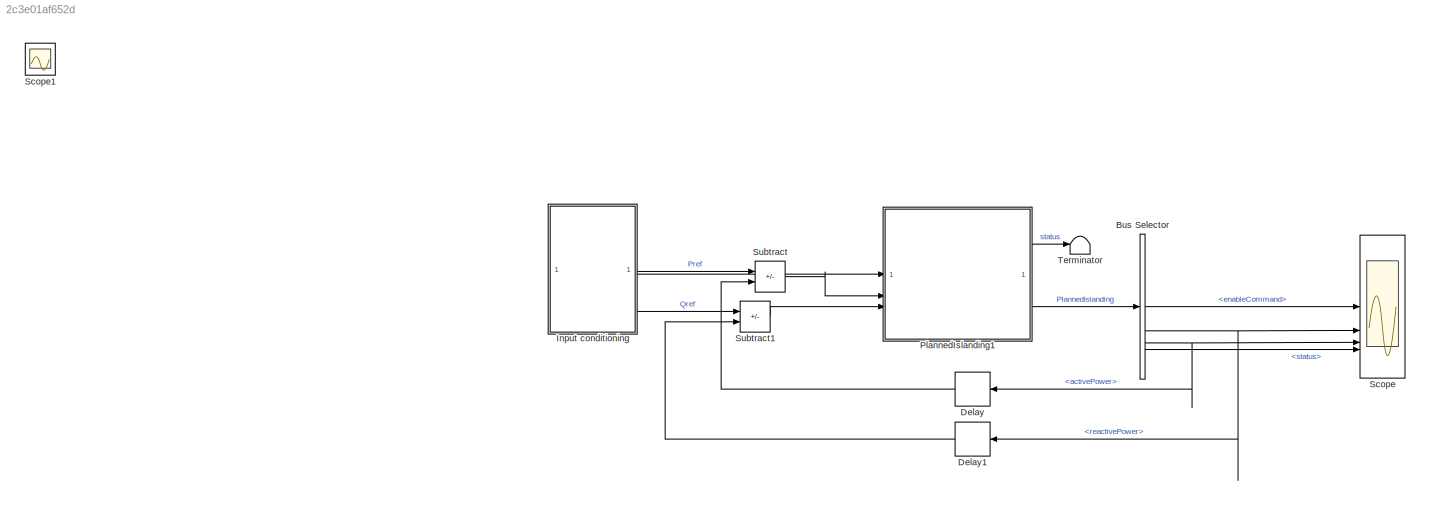
MODEL slx_2c3e01af652d
KIND model
CONFIG AbsTol = auto
CONFIG EnableMultiTasking = off
CONFIG FixedStep = auto
CONFIG MaxStep = auto
CONFIG MinStep = auto
CONFIG PostLoadFcn = PlannedIslandParam;
CONFIG RelTol = 1e-3
CONFIG SampleTimeConstraint = Unconstrained
CONFIG SolverName = FixedStepAuto
CONFIG StartTime = 0.0
CONFIG StopTime = 20
BLOCK [BusSelector] Bus Selector
  OutputSignals = enableCommand,reactivePower,activePower,status
BLOCK [Delay] Delay
  DelayLength = 1
  InputPortMap = u0
  NameLocation = top
BLOCK [Delay] Delay1
  DelayLength = 1
  InputPortMap = u0
  NameLocation = top
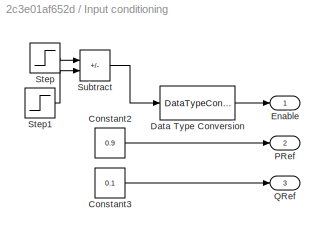
BLOCK [SubSystem] Input conditioning
BLOCK [Constant] Input conditioning/Constant2
  Value = 0.9
BLOCK [Constant] Input conditioning/Constant3
  Value = 0.1
BLOCK [DataTypeConversion] Input conditioning/Data Type Conversion
  OutDataTypeStr = boolean
  RndMeth = Floor
  SaturateOnIntegerOverflow = off
BLOCK [Outport] Input conditioning/Enable
BLOCK [Outport] Input conditioning/PRef
  Port = 2
BLOCK [Outport] Input conditioning/QRef
  Port = 3
BLOCK [Step] Input conditioning/Step
  SampleTime = 0
  Time = 3
BLOCK [Step] Input conditioning/Step1
  SampleTime = 0
  Time = 12
BLOCK [Sum] Input conditioning/Subtract
  IconShape = rectangular
  Inputs = +-
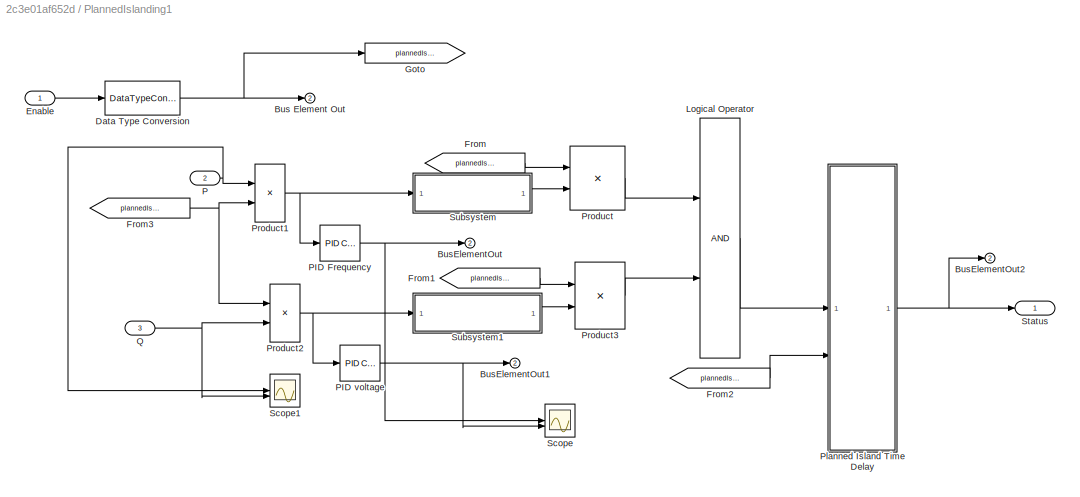
BLOCK [SubSystem] PlannedIslanding1
  CopyFcn = set_param(gcbh,'LinkStatus','none');
BLOCK [Outport] PlannedIslanding1/Bus Element Out
  Port = 2
BLOCK [Outport] PlannedIslanding1/BusElementOut
  Port = 2
BLOCK [Outport] PlannedIslanding1/BusElementOut1
  Port = 2
BLOCK [Outport] PlannedIslanding1/BusElementOut2
  Port = 2
BLOCK [DataTypeConversion] PlannedIslanding1/Data Type Conversion
  OutDataTypeStr = double
  RndMeth = Floor
  SaturateOnIntegerOverflow = off
BLOCK [Inport] PlannedIslanding1/Enable
BLOCK [From] PlannedIslanding1/From
  GotoTag = plannedIslanding
BLOCK [From] PlannedIslanding1/From1
  GotoTag = plannedIslanding
BLOCK [From] PlannedIslanding1/From2
  GotoTag = plannedIslanding
BLOCK [From] PlannedIslanding1/From3
  GotoTag = plannedIslanding
BLOCK [Goto] PlannedIslanding1/Goto
  GotoTag = plannedIslanding
BLOCK [Logic] PlannedIslanding1/Logical Operator
  AllPortsSameDT = off
  OutDataTypeStr = boolean
BLOCK [Inport] PlannedIslanding1/P
  Port = 2
BLOCK [Reference] PlannedIslanding1/PID Frequency  REF=slpidlib/PID Controller
  SourceBlock = slpidlib/PID Controller
  SourceType = PID 1dof
BLOCK [Reference] PlannedIslanding1/PID voltage  REF=slpidlib/PID Controller
  SourceBlock = slpidlib/PID Controller
  SourceType = PID 1dof
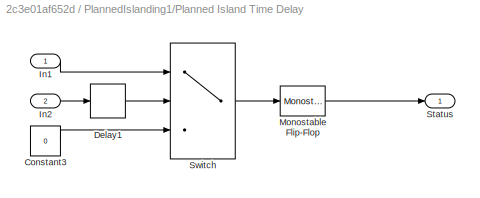
BLOCK [SubSystem] PlannedIslanding1/Planned Island Time Delay
BLOCK [Constant] PlannedIslanding1/Planned Island Time Delay/Constant3
  Value = 0
BLOCK [Delay] PlannedIslanding1/Planned Island Time Delay/Delay1
  DelayLength = 1
  InputPortMap = u0
  SampleTime = Ts
BLOCK [Inport] PlannedIslanding1/Planned Island Time Delay/In1
BLOCK [Inport] PlannedIslanding1/Planned Island Time Delay/In2
  Port = 2
BLOCK [Reference] PlannedIslanding1/Planned Island Time Delay/Monostable Flip-Flop  REF=eeGeneralControl/Monostable Flip-Flop
  SourceBlock = eeGeneralControl/Monostable Flip-Flop
  SourceType = Monostable Flip-Flop
BLOCK [Outport] PlannedIslanding1/Planned Island Time Delay/Status
BLOCK [Switch] PlannedIslanding1/Planned Island Time Delay/Switch
  Criteria = u2 > Threshold
  InputSameDT = off
  SaturateOnIntegerOverflow = off
  Threshold = 0.5
BLOCK [Product] PlannedIslanding1/Product
BLOCK [Product] PlannedIslanding1/Product1
BLOCK [Product] PlannedIslanding1/Product2
BLOCK [Product] PlannedIslanding1/Product3
BLOCK [Inport] PlannedIslanding1/Q
  Port = 3
BLOCK [Scope] PlannedIslanding1/Scope
  ActiveDisplayYMaximum = 1
  ActiveDisplayYMinimum = -1
  DataLoggingVariableName = ScopeData35
  Floating = off
  GraphicalSettings = {"Style":{"BackgroundColor":[0.12941176470588237,0.12941176470588237,0.12941176470588237],"AxesColor":[0.07058823529411765,0.07058823529411765,0.07058823529411765],"LabelsColor":[0.8509803921568627,0.8509803921568627,0.8509803921568627],"PreserveColors":false,"Visible":[true,true],"LineStyle":["-","-"],"LineWidth":[1.5,1.5],"BarWidth":[0.9,0.9],"LineColor":["auto","auto"],"LineFaceAlpha":[1,1],"Li...<+2296ch>
  LayoutDimensionsString = [2,1]
  MultipleDisplayCache = [{"MaxYLimMag":1,"MaxYLimReal":1,"MinYLimMag":0,"MinYLimReal":-1,"PlotAsMagnitudePhase":false,"ShowGrid":true,"ShowLegend":false,"Title":"%<SignalLabel>","YLabel":""},{"MaxYLimMag":1,"MaxYLimReal":1,"MinYLimMag":0,"MinYLimReal":-1,"PlotAsMagnitudePhase":false,"ShowGrid":true,"ShowLegend":false,"Title":"%<SignalLabel>","YLabel":""}]
  NumInputPorts = 2
  ScopeFrameLocation = window
  WasSavedAsWebScope = on
  WindowPosition = [499.000000,148.000000,566.000000,432.000000,]
BLOCK [Scope] PlannedIslanding1/Scope1
  ActiveDisplayYMaximum = 1.1685546180291482
  ActiveDisplayYMinimum = -1.6827967094302978
  DataLoggingVariableName = ScopeData36
  Floating = off
  GraphicalSettings = {"Style":{"BackgroundColor":[0.12941176470588237,0.12941176470588237,0.12941176470588237],"AxesColor":[0.07058823529411765,0.07058823529411765,0.07058823529411765],"LabelsColor":[0.8509803921568627,0.8509803921568627,0.8509803921568627],"PreserveColors":false,"Visible":[true,true],"LineStyle":["-","-"],"LineWidth":[1.5,1.5],"BarWidth":[0.9,0.9],"LineColor":["auto","auto"],"LineFaceAlpha":[1,1],"Li...<+2090ch>
  MultipleDisplayCache = [{"MaxYLimMag":11.557090207821364,"MaxYLimReal":1.1685546180291482,"MinYLimMag":0,"MinYLimReal":-1.6827967094302978,"PlotAsMagnitudePhase":false,"ShowGrid":true,"ShowLegend":false,"Title":"%<SignalLabel>","YLabel":""}]
  NumInputPorts = 2
  ScopeFrameLocation = window
  WasSavedAsWebScope = on
  WindowPosition = [360.000000,150.000000,560.000000,420.000000,]
BLOCK [Outport] PlannedIslanding1/Status
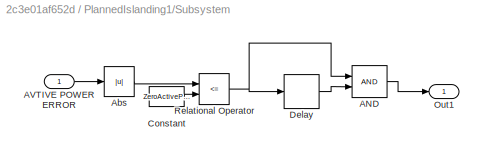
BLOCK [SubSystem] PlannedIslanding1/Subsystem
BLOCK [Logic] PlannedIslanding1/Subsystem/AND
  AllPortsSameDT = off
  IconShape = distinctive
  OutDataTypeStr = boolean
BLOCK [Inport] PlannedIslanding1/Subsystem/AVTIVE POWER ERROR
BLOCK [Abs] PlannedIslanding1/Subsystem/Abs
  SaturateOnIntegerOverflow = off
BLOCK [Constant] PlannedIslanding1/Subsystem/Constant
  SampleTime = -1
  Value = ZeroActivePowerThreshold
BLOCK [Delay] PlannedIslanding1/Subsystem/Delay
  DelayLength = 1000
  InputPortMap = u0
  SampleTime = Ts
BLOCK [Outport] PlannedIslanding1/Subsystem/Out1
BLOCK [RelationalOperator] PlannedIslanding1/Subsystem/Relational Operator
  InputSameDT = off
  Operator = <=
  OutDataTypeStr = boolean
  RndMeth = Simplest
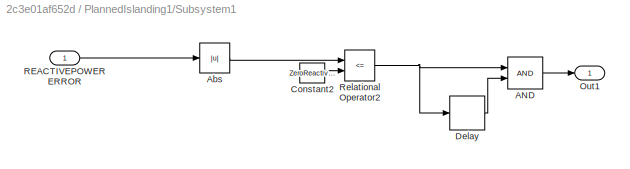
BLOCK [SubSystem] PlannedIslanding1/Subsystem1
BLOCK [Logic] PlannedIslanding1/Subsystem1/AND
  AllPortsSameDT = off
  IconShape = distinctive
  OutDataTypeStr = boolean
BLOCK [Abs] PlannedIslanding1/Subsystem1/Abs
  SaturateOnIntegerOverflow = off
BLOCK [Constant] PlannedIslanding1/Subsystem1/Constant2
  Value = ZeroReactivePowerThreshold
BLOCK [Delay] PlannedIslanding1/Subsystem1/Delay
  DelayLength = 50
  InputPortMap = u0
  SampleTime = Ts
BLOCK [Outport] PlannedIslanding1/Subsystem1/Out1
BLOCK [Inport] PlannedIslanding1/Subsystem1/REACTIVEPOWER ERROR
BLOCK [RelationalOperator] PlannedIslanding1/Subsystem1/Relational Operator2
  InputSameDT = off
  Operator = <=
  OutDataTypeStr = boolean
  RndMeth = Simplest
BLOCK [Scope] Scope
  ActiveDisplayYMaximum = 1.125
  ActiveDisplayYMinimum = -0.12499999999999997
  Floating = off
  GraphicalSettings = {"Style":{"BackgroundColor":[0.12941176470588237,0.12941176470588237,0.12941176470588237],"AxesColor":[0.07058823529411765,0.07058823529411765,0.07058823529411765],"LabelsColor":[0.8509803921568627,0.8509803921568627,0.8509803921568627],"PreserveColors":false,"Visible":[true,true,true,true],"LineStyle":["-","-","-","-"],"LineWidth":[1.5,1.5,1.5,1.5],"BarWidth":[0.9,0.9,0.9,0.9],"LineColor":["auto"...<+3188ch>
  LayoutDimensionsString = [4,1]
  MultipleDisplayCache = [{"MaxYLimMag":1.125,"MaxYLimReal":1.125,"MinYLimMag":0,"MinYLimReal":-0.12499999999999997,"PlotAsMagnitudePhase":false,"ShowGrid":true,"ShowLegend":true,"Title":"%<SignalLabel>","YLabel":""},{"MaxYLimMag":1,"MaxYLimReal":1,"MinYLimMag":0,"MinYLimReal":-1,"PlotAsMagnitudePhase":false,"ShowGrid":true,"ShowLegend":true,"Title":"%<SignalLabel>","YLabel":""},{"MaxYLimMag":0.1125,"MaxYLimReal":1.0125,"...<+343ch>
  NumInputPorts = 4
  ScopeFrameLocation = window
  ShowLegend = on
  WasSavedAsWebScope = on
  WindowPosition = [1232.000000,-36.000000,1308.000000,725.000000,]
BLOCK [Scope] Scope1
  DataLoggingVariableName = ScopeData3
  Floating = off
  GraphicalSettings = {"GraphicalSettings":{"LegacySettings":true,"Style":{"Style":{"AxesColor":"[0 0 0]","ChannelNames":[""],"ColorOrder":"[1 0.909803921568627 0.392156862745098;0.149019607843137 0.549019607843137 0.866666666666667;0.96078431372549 0.466666666666667 0.16078431372549;0.286274509803922 0.858823529411765 0.250980392156863;0.752941176470588 0.36078431372549 0.984313725490196;0.423529411764706 0.9568627450...<+436ch>
  IOType = viewer
  NumInputPorts = 1
  WasSavedAsWebScope = on
BLOCK [Sum] Subtract
  IconShape = rectangular
  Inputs = +-
BLOCK [Sum] Subtract1
  IconShape = rectangular
  Inputs = +-
BLOCK [Terminator] Terminator
LINE Bus Selector:1 -> Scope:1
NET Bus Selector:2 -> Delay1:1, Scope:2
NET Bus Selector:3 -> Delay:1, Scope:3
LINE Bus Selector:4 -> Scope:4
LINE Delay1:1 -> Subtract1:2
LINE Delay:1 -> Subtract:2
LINE Input conditioning/Constant2:1 -> Input conditioning/PRef:1
LINE Input conditioning/Constant3:1 -> Input conditioning/QRef:1
LINE Input conditioning/Data Type Conversion:1 -> Input conditioning/Enable:1
LINE Input conditioning/Step1:1 -> Input conditioning/Subtract:2
LINE Input conditioning/Step:1 -> Input conditioning/Subtract:1
LINE Input conditioning/Subtract:1 -> Input conditioning/Data Type Conversion:1
LINE Input conditioning:1 -> PlannedIslanding1:1
LINE Input conditioning:2 -> Subtract:1
LINE Input conditioning:3 -> Subtract1:1
NET PlannedIslanding1/Data Type Conversion:1 -> PlannedIslanding1/Bus Element Out:1, PlannedIslanding1/Goto:1
LINE PlannedIslanding1/Enable:1 -> PlannedIslanding1/Data Type Conversion:1
LINE PlannedIslanding1/From1:1 -> PlannedIslanding1/Product3:1
LINE PlannedIslanding1/From2:1 -> PlannedIslanding1/Planned Island Time Delay:2
NET PlannedIslanding1/From3:1 -> PlannedIslanding1/Product1:2, PlannedIslanding1/Product2:1
LINE PlannedIslanding1/From:1 -> PlannedIslanding1/Product:1
LINE PlannedIslanding1/Logical Operator:1 -> PlannedIslanding1/Planned Island Time Delay:1
NET PlannedIslanding1/P:1 -> PlannedIslanding1/Product1:1, PlannedIslanding1/Scope1:1
NET PlannedIslanding1/PID Frequency:1 -> PlannedIslanding1/BusElementOut:1, PlannedIslanding1/Scope:1
NET PlannedIslanding1/PID voltage:1 -> PlannedIslanding1/BusElementOut1:1, PlannedIslanding1/Scope:2
LINE PlannedIslanding1/Planned Island Time Delay/Constant3:1 -> PlannedIslanding1/Planned Island Time Delay/Switch:3
LINE PlannedIslanding1/Planned Island Time Delay/Delay1:1 -> PlannedIslanding1/Planned Island Time Delay/Switch:2
LINE PlannedIslanding1/Planned Island Time Delay/In1:1 -> PlannedIslanding1/Planned Island Time Delay/Switch:1
LINE PlannedIslanding1/Planned Island Time Delay/In2:1 -> PlannedIslanding1/Planned Island Time Delay/Delay1:1
LINE PlannedIslanding1/Planned Island Time Delay/Monostable Flip-Flop:1 -> PlannedIslanding1/Planned Island Time Delay/Status:1
LINE PlannedIslanding1/Planned Island Time Delay/Switch:1 -> PlannedIslanding1/Planned Island Time Delay/Monostable Flip-Flop:1
NET PlannedIslanding1/Planned Island Time Delay:1 -> PlannedIslanding1/BusElementOut2:1, PlannedIslanding1/Status:1
NET PlannedIslanding1/Product1:1 -> PlannedIslanding1/PID Frequency:1, PlannedIslanding1/Subsystem:1
NET PlannedIslanding1/Product2:1 -> PlannedIslanding1/PID voltage:1, PlannedIslanding1/Subsystem1:1
LINE PlannedIslanding1/Product3:1 -> PlannedIslanding1/Logical Operator:2
LINE PlannedIslanding1/Product:1 -> PlannedIslanding1/Logical Operator:1
NET PlannedIslanding1/Q:1 -> PlannedIslanding1/Product2:2, PlannedIslanding1/Scope1:2
LINE PlannedIslanding1/Subsystem/AND:1 -> PlannedIslanding1/Subsystem/Out1:1
LINE PlannedIslanding1/Subsystem/AVTIVE POWER ERROR:1 -> PlannedIslanding1/Subsystem/Abs:1
LINE PlannedIslanding1/Subsystem/Abs:1 -> PlannedIslanding1/Subsystem/Relational Operator:1
LINE PlannedIslanding1/Subsystem/Constant:1 -> PlannedIslanding1/Subsystem/Relational Operator:2
LINE PlannedIslanding1/Subsystem/Delay:1 -> PlannedIslanding1/Subsystem/AND:2
NET PlannedIslanding1/Subsystem/Relational Operator:1 -> PlannedIslanding1/Subsystem/AND:1, PlannedIslanding1/Subsystem/Delay:1
LINE PlannedIslanding1/Subsystem1/AND:1 -> PlannedIslanding1/Subsystem1/Out1:1
LINE PlannedIslanding1/Subsystem1/Abs:1 -> PlannedIslanding1/Subsystem1/Relational Operator2:1
LINE PlannedIslanding1/Subsystem1/Constant2:1 -> PlannedIslanding1/Subsystem1/Relational Operator2:2
LINE PlannedIslanding1/Subsystem1/Delay:1 -> PlannedIslanding1/Subsystem1/AND:2
LINE PlannedIslanding1/Subsystem1/REACTIVEPOWER ERROR:1 -> PlannedIslanding1/Subsystem1/Abs:1
NET PlannedIslanding1/Subsystem1/Relational Operator2:1 -> PlannedIslanding1/Subsystem1/AND:1, PlannedIslanding1/Subsystem1/Delay:1
LINE PlannedIslanding1/Subsystem1:1 -> PlannedIslanding1/Product3:2
LINE PlannedIslanding1/Subsystem:1 -> PlannedIslanding1/Product:2
LINE PlannedIslanding1:1 -> Terminator:1
LINE PlannedIslanding1:2 -> Bus Selector:1
LINE Subtract1:1 -> PlannedIslanding1:3
LINE Subtract:1 -> PlannedIslanding1:2
note: NET lines group one-source signal fan-out (src -> all destinations, sorted); 1:1 wires keep LINE
